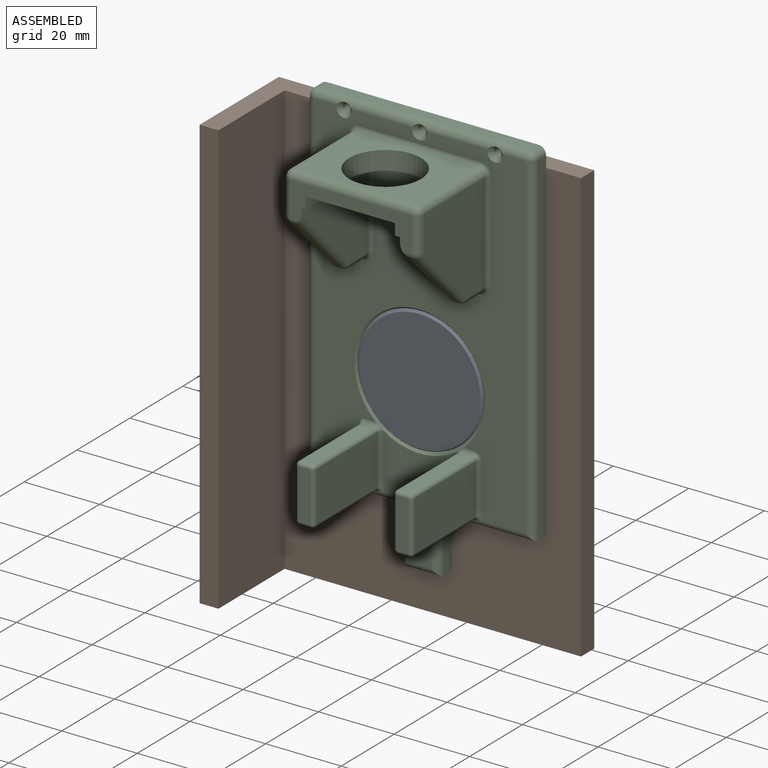
[diagram: assembled view]
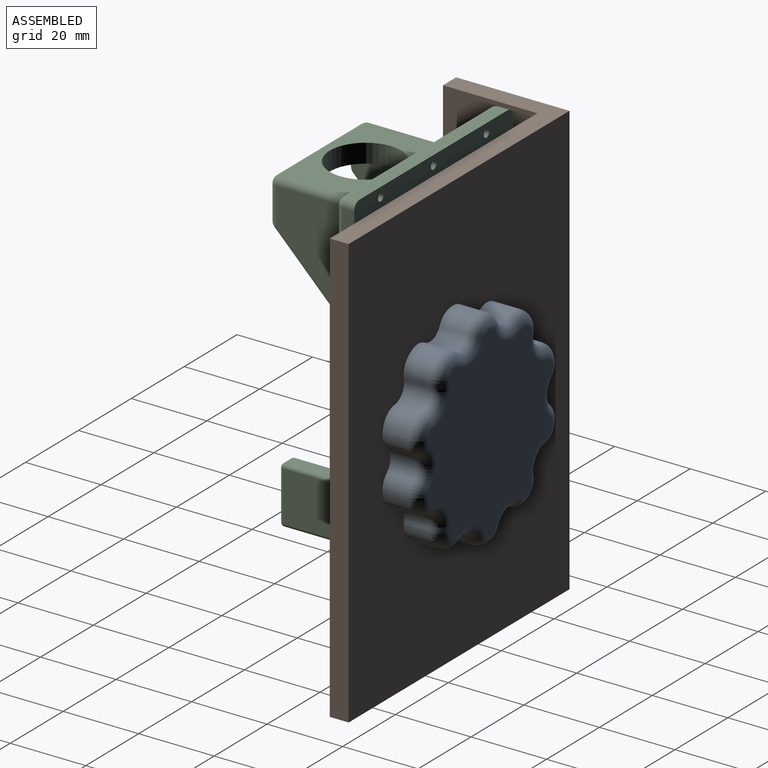
[diagram: assembled view, second angle]
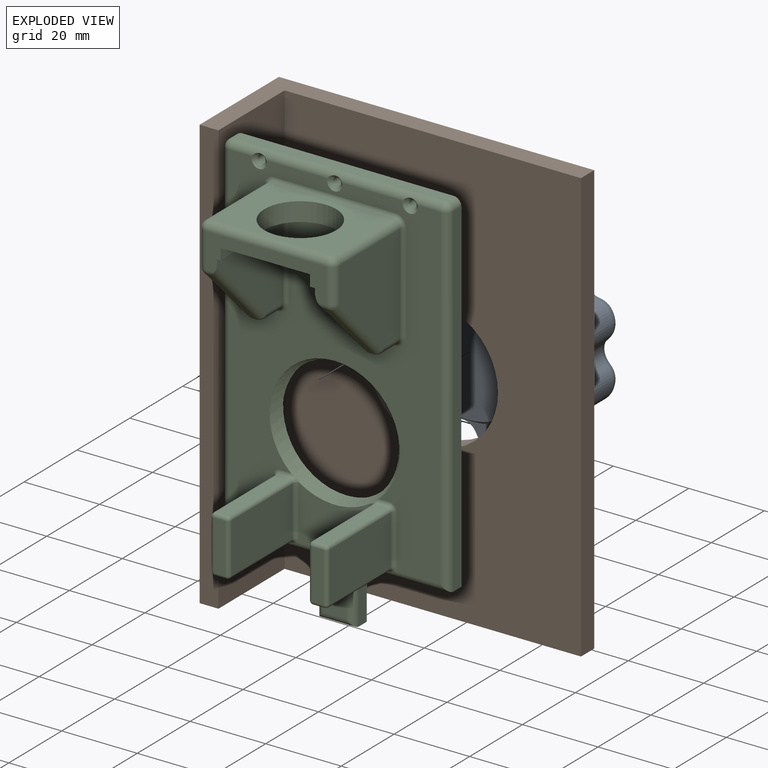
[diagram: exploded view]
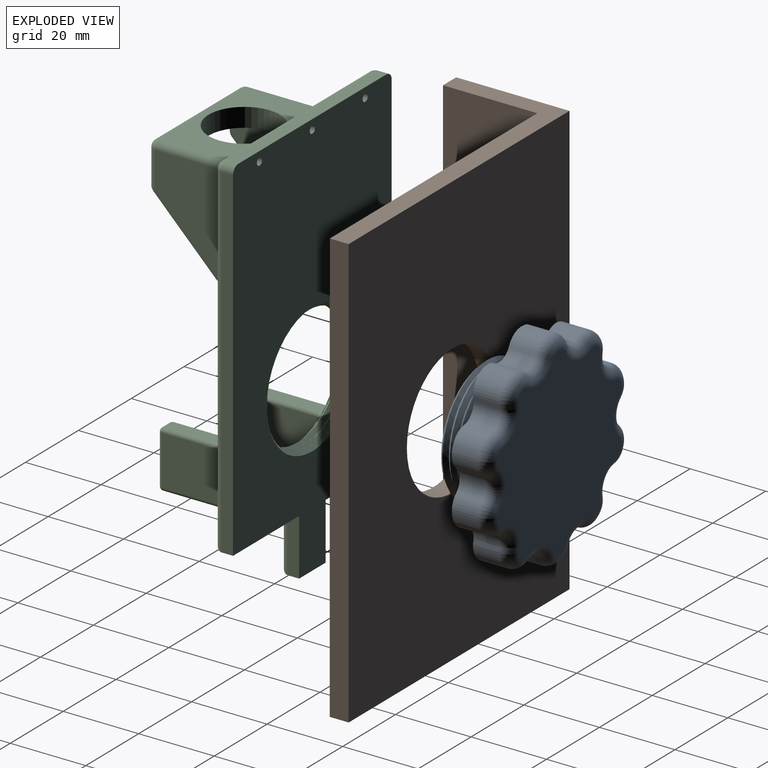
[diagram: exploded view, second angle]
ASSEMBLY  parts=3 mates=2
PART A: 90 faces, bbox 54x22.3x56 mm
  f0: cylinder r=17.15mm len=34.3mm, axis (0,1,0), area 432.6mm2, adj f2,f5,f6,f7,f89
  f1: cylinder r=17.15mm len=34.3mm, axis (0,1,0), area 1.6mm2, adj f2,f4,f5,f6
  f2: cylinder r=17.15mm len=34.3mm, axis (0,1,0), area 2.2mm2, adj f0,f1,f5,f6
  f3: plane 32.3x32.3mm, normal (0,-1,0), area 819.4mm2, adj f4
  f4: cone r=16.15mm half-angle=45deg, axis (0,1,0), area 74mm2, adj f1,f3,f5,f6
  f5: bspline ~39.61x34.3mm, area 404.7mm2, adj f0,f1,f2,f4,f6,f89
  f6: bspline ~39.61x34.3mm, area 404.5mm2, adj f0,f1,f2,f4,f5,f89
  f7: plane 55x52.96mm, normal (0,-1,0), area 1159.3mm2, adj f0,f8,f9,f10,f11,f12,f13,f14
  f8: cylinder r=4mm len=7mm, axis (0,-1,0), area 46.9mm2, adj f7,f29,f48,f86
  f9: cylinder r=27.5mm len=7mm, axis (0,-1,0), area 4.7mm2, adj f7,f29,f30,f87
  f10: cylinder r=4mm len=7mm, axis (0,-1,0), area 46.9mm2, adj f7,f30,f31,f83
  f11: cylinder r=27.5mm len=7mm, axis (0,-1,0), area 4.7mm2, adj f7,f31,f32,f79
  f12: cylinder r=4mm len=7mm, axis (0,-1,0), area 46.9mm2, adj f7,f32,f33,f75
  f13: cylinder r=27.5mm len=7mm, axis (0,-1,0), area 4.7mm2, adj f7,f33,f34,f71
  f14: cylinder r=4mm len=7mm, axis (0,-1,0), area 46.9mm2, adj f7,f34,f35,f67
  f15: cylinder r=27.5mm len=7mm, axis (0,-1,0), area 4.7mm2, adj f7,f35,f36,f63
  f16: cylinder r=4mm len=7mm, axis (0,-1,0), area 46.9mm2, adj f7,f36,f37,f59
  f17: cylinder r=27.5mm len=7mm, axis (0,-1,0), area 4.7mm2, adj f7,f37,f38,f55
  f18: cylinder r=4mm len=7mm, axis (0,-1,0), area 46.9mm2, adj f7,f38,f39,f51
  f19: cylinder r=27.5mm len=7mm, axis (0,-1,0), area 4.7mm2, adj f7,f39,f40,f50
  f20: cylinder r=4mm len=7mm, axis (0,-1,0), area 46.9mm2, adj f7,f40,f41,f54
  f21: cylinder r=27.5mm len=7mm, axis (0,-1,0), area 4.7mm2, adj f7,f41,f42,f58
  f22: cylinder r=4mm len=7mm, axis (0,-1,0), area 46.9mm2, adj f7,f42,f43,f62
  f23: cylinder r=27.5mm len=7mm, axis (0,-1,0), area 4.7mm2, adj f7,f43,f44,f66
  f24: cylinder r=4mm len=7mm, axis (0,-1,0), area 46.9mm2, adj f7,f44,f45,f70
  f25: cylinder r=27.5mm len=7mm, axis (0,-1,0), area 4.7mm2, adj f7,f45,f46,f74
  f26: cylinder r=4mm len=7mm, axis (0,-1,0), area 46.9mm2, adj f7,f46,f47,f78
  f27: cylinder r=27.5mm len=7mm, axis (0,-1,0), area 4.7mm2, adj f7,f47,f48,f82
  f28: plane 49x46.96mm, normal (0,1,0), area 1548.2mm2, adj f49,f50,f51,f52,f53,f54,f55,f56
  f29: cylinder r=5mm len=7mm, axis (0,1,0), area 39.9mm2, adj f7,f8,f9,f88
  f30: cylinder r=5mm len=7mm, axis (0,1,0), area 39.9mm2, adj f7,f9,f10,f85
  f31: cylinder r=5mm len=7mm, axis (0,1,0), area 39.9mm2, adj f7,f10,f11,f81
  f32: cylinder r=5mm len=7mm, axis (0,1,0), area 39.9mm2, adj f7,f11,f12,f77
  f33: cylinder r=5mm len=7mm, axis (0,1,0), area 39.9mm2, adj f7,f12,f13,f73
  f34: cylinder r=5mm len=7mm, axis (0,1,0), area 39.9mm2, adj f7,f13,f14,f69
  f35: cylinder r=5mm len=7mm, axis (0,1,0), area 39.9mm2, adj f7,f14,f15,f65
  f36: cylinder r=5mm len=7mm, axis (0,1,0), area 39.9mm2, adj f7,f15,f16,f61
  f37: cylinder r=5mm len=7mm, axis (0,1,0), area 39.9mm2, adj f7,f16,f17,f57
  f38: cylinder r=5mm len=7mm, axis (0,1,0), area 39.9mm2, adj f7,f17,f18,f53
  f39: cylinder r=5mm len=7mm, axis (0,1,0), area 39.9mm2, adj f7,f18,f19,f49
  f40: cylinder r=5mm len=7mm, axis (0,1,0), area 39.9mm2, adj f7,f19,f20,f52
  f41: cylinder r=5mm len=7mm, axis (0,1,0), area 39.9mm2, adj f7,f20,f21,f56
  f42: cylinder r=5mm len=7mm, axis (0,1,0), area 39.9mm2, adj f7,f21,f22,f60
  f43: cylinder r=5mm len=7mm, axis (0,1,0), area 39.9mm2, adj f7,f22,f23,f64
  f44: cylinder r=5mm len=7mm, axis (0,1,0), area 39.9mm2, adj f7,f23,f24,f68
  f45: cylinder r=5mm len=7mm, axis (0,1,0), area 39.9mm2, adj f7,f24,f25,f72
  f46: cylinder r=5mm len=7mm, axis (0,1,0), area 39.9mm2, adj f7,f25,f26,f76
  f47: cylinder r=5mm len=7mm, axis (0,1,0), area 39.9mm2, adj f7,f26,f27,f80
  f48: cylinder r=5mm len=7mm, axis (0,1,0), area 39.9mm2, adj f7,f8,f27,f84
  f49: torus R=2mm, axis (0,1,0), area 21mm2, adj f28,f39,f50,f51
  f50: torus R=24.5mm, axis (0,1,0), area 3mm2, adj f19,f28,f49,f52
  f51: torus R=7mm, axis (0,1,0), area 40.2mm2, adj f18,f28,f49,f53
  f52: torus R=2mm, axis (0,1,0), area 21mm2, adj f28,f40,f50,f54
  f53: torus R=2mm, axis (0,1,0), area 21mm2, adj f28,f38,f51,f55
  f54: torus R=7mm, axis (0,1,0), area 40.2mm2, adj f20,f28,f52,f56
  f55: torus R=24.5mm, axis (0,1,0), area 3mm2, adj f17,f28,f53,f57
  f56: torus R=2mm, axis (0,1,0), area 21mm2, adj f28,f41,f54,f58
  f57: torus R=2mm, axis (0,1,0), area 21mm2, adj f28,f37,f55,f59
  f58: torus R=24.5mm, axis (0,1,0), area 3mm2, adj f21,f28,f56,f60
  f59: torus R=7mm, axis (0,1,0), area 40.2mm2, adj f16,f28,f57,f61
  f60: torus R=2mm, axis (0,1,0), area 21mm2, adj f28,f42,f58,f62
  f61: torus R=2mm, axis (0,1,0), area 21mm2, adj f28,f36,f59,f63
  f62: torus R=7mm, axis (0,1,0), area 40.2mm2, adj f22,f28,f60,f64
  f63: torus R=24.5mm, axis (0,1,0), area 3mm2, adj f15,f28,f61,f65
  f64: torus R=2mm, axis (0,1,0), area 21mm2, adj f28,f43,f62,f66
  f65: torus R=2mm, axis (0,1,0), area 21mm2, adj f28,f35,f63,f67
  f66: torus R=24.5mm, axis (0,1,0), area 3mm2, adj f23,f28,f64,f68
  f67: torus R=7mm, axis (0,1,0), area 40.2mm2, adj f14,f28,f65,f69
  f68: torus R=2mm, axis (0,1,0), area 21mm2, adj f28,f44,f66,f70
  f69: torus R=2mm, axis (0,1,0), area 21mm2, adj f28,f34,f67,f71
  f70: torus R=7mm, axis (0,1,0), area 40.2mm2, adj f24,f28,f68,f72
  f71: torus R=24.5mm, axis (0,1,0), area 3mm2, adj f13,f28,f69,f73
  f72: torus R=2mm, axis (0,1,0), area 21mm2, adj f28,f45,f70,f74
  f73: torus R=2mm, axis (0,1,0), area 21mm2, adj f28,f33,f71,f75
  f74: torus R=24.5mm, axis (0,1,0), area 3mm2, adj f25,f28,f72,f76
  f75: torus R=7mm, axis (0,1,0), area 40.2mm2, adj f12,f28,f73,f77
  f76: torus R=2mm, axis (0,1,0), area 21mm2, adj f28,f46,f74,f78
  f77: torus R=2mm, axis (0,1,0), area 21mm2, adj f28,f32,f75,f79
  f78: torus R=7mm, axis (0,1,0), area 40.2mm2, adj f26,f28,f76,f80
  f79: torus R=24.5mm, axis (0,1,0), area 3mm2, adj f11,f28,f77,f81
  f80: torus R=2mm, axis (0,1,0), area 21mm2, adj f28,f47,f78,f82
  f81: torus R=2mm, axis (0,1,0), area 21mm2, adj f28,f31,f79,f83
  f82: torus R=24.5mm, axis (0,1,0), area 3mm2, adj f27,f28,f80,f84
  f83: torus R=7mm, axis (0,1,0), area 40.2mm2, adj f10,f28,f81,f85
  f84: torus R=2mm, axis (0,1,0), area 21mm2, adj f28,f48,f82,f86
  f85: torus R=2mm, axis (0,1,0), area 21mm2, adj f28,f30,f83,f87
  f86: torus R=7mm, axis (0,1,0), area 40.2mm2, adj f8,f28,f84,f88
  f87: torus R=24.5mm, axis (0,1,0), area 3mm2, adj f9,f28,f85,f88
  f88: torus R=2mm, axis (0,1,0), area 21mm2, adj f28,f29,f86,f87
  f89: plane 35.29x35.29mm, normal (0,-1,0), area 52.3mm2, adj f0,f5,f6
PART B: 9 faces, bbox 83.5x30x114.5 mm
  f0: plane 114.5x30mm, normal (-1,0,0), area 3435mm2, adj f1,f5,f6,f7
  f1: plane 114.5x5mm, normal (0,-1,0), area 572.5mm2, adj f0,f2,f6,f7
  f2: plane 114.5x25mm, normal (1,0,0), area 2862.5mm2, adj f1,f3,f6,f7
  f3: plane 114.5x78.5mm, normal (0,-1,0), area 8053.4mm2, adj f2,f4,f6,f7,f8
  f4: plane 114.5x5mm, normal (1,0,0), area 572.5mm2, adj f3,f5,f6,f7
  f5: plane 114.5x83.5mm, normal (0,1,0), area 8625.9mm2, adj f0,f4,f6,f7,f8
  f6: plane 83.5x30mm, normal (0,0,1), area 542.5mm2, adj f0,f1,f2,f3,f4,f5
  f7: plane 83.5x30mm, normal (0,0,-1), area 542.5mm2, adj f0,f1,f2,f3,f4,f5
  f8: cylinder r=17.25mm len=34.5mm, axis (0,-1,0), area 541.9mm2, adj f3,f5
PART C: 146 faces, bbox 60.1x33.8x108.2 mm
  f0: plane 89.07x56mm, normal (0,-1,0), area 2989.5mm2, adj f15,f16,f17,f26,f28,f29,f30,f59
  f1: plane 29.44x19.54mm, normal (0,-1,0), area 327.4mm2, adj f58,f59,f60,f63,f65,f72,f101,f105
  f2: plane 56x3mm, normal (0,0,1), area 168mm2, adj f14,f61,f66,f69
  f3: plane 91.07x3mm, normal (-1,0,0), area 273.2mm2, adj f4,f14,f67,f69
  f4: plane 25x3mm, normal (0,0,-1), area 75mm2, adj f3,f5,f14,f65
  f5: plane 15x3mm, normal (-1,0,0), area 45mm2, adj f4,f6,f14,f63
  f6: plane 10x3mm, normal (0,0,-1), area 30mm2, adj f5,f7,f14,f60
  f7: plane 15x3mm, normal (1,0,0), area 45mm2, adj f6,f8,f14,f58
  f8: plane 25x3mm, normal (0,0,-1), area 75mm2, adj f7,f9,f14,f59
  f9: plane 91.07x3mm, normal (1,0,0), area 273.2mm2, adj f8,f14,f61,f62
  f10: cylinder r=1mm len=4mm, axis (0,1,0), area 25.1mm2, adj f14,f30
  f11: cylinder r=1mm len=4mm, axis (0,1,0), area 25.1mm2, adj f14,f29
  f12: cylinder r=1mm len=4mm, axis (0,1,0), area 25.1mm2, adj f14,f28
  f13: cylinder r=16.25mm len=32.5mm, axis (0,1,0), area 3mm2, adj f71,f72,f73,f74
  f14: plane 108.07x60mm, normal (0,1,0), area 4788.3mm2, adj f2,f3,f4,f5,f6,f7,f8,f9
  f15: plane 26x23.63mm, normal (0,0,-1), area 330.7mm2, adj f0,f16,f26,f27,f70
  f16: plane 26x3mm, normal (-1,0,0), area 78mm2, adj f0,f15,f17,f27
  f17: plane 26x1.38mm, normal (0,0,-1), area 35.5mm2, adj f0,f16,f18,f27,f85
  f18: plane 25x20mm, normal (-1,0,0), area 322.7mm2, adj f17,f27,f47,f48,f85
  f19: plane 6.17x1mm, normal (0,0,-1), area 6.2mm2, adj f47,f53,f54,f87
  f20: plane 26x23mm, normal (1,0,0), area 456.4mm2, adj f46,f52,f53,f57,f89
  f21: plane 32x23mm, normal (0,0,1), area 452.5mm2, adj f43,f45,f46,f70,f91
  f22: plane 26x23mm, normal (-1,0,0), area 456.4mm2, adj f36,f40,f42,f43,f93
  f23: plane 6.17x1mm, normal (0,0,-1), area 6.2mm2, adj f33,f35,f36,f95
  f24: plane 25x20mm, normal (1,0,0), area 322.7mm2, adj f25,f27,f33,f37,f97
  f25: plane 26x1mm, normal (0,0,-1), area 25.8mm2, adj f24,f26,f27,f97
  f26: plane 26x3mm, normal (1,0,0), area 78mm2, adj f0,f15,f25,f27
  f27: plane 32.12x9.29mm, normal (0,-1,0), area 139.4mm2, adj f15,f16,f17,f18,f24,f25,f26,f37
  f28: cone r=1mm half-angle=45deg, axis (0,-1,0), area 13.3mm2, adj f0,f12,f66
  f29: cone r=1mm half-angle=45deg, axis (0,-1,0), area 13.3mm2, adj f0,f11,f66
  f30: cone r=1mm half-angle=45deg, axis (0,-1,0), area 13.3mm2, adj f0,f10,f66
  f31: plane 16.83x16.83mm, normal (0,-0.71,-0.71), area 23.8mm2, adj f35,f37,f39,f40
  f32: plane 16.83x16.83mm, normal (0,-0.71,-0.71), area 23.8mm2, adj f48,f51,f54,f57
  f33: cylinder r=2mm len=6.17mm, axis (0,1,0), area 19.4mm2, adj f23,f24,f34,f96
  f34: sphere r=2mm, area 3.9mm2, adj f33,f35,f37
  f35: cylinder r=2mm len=1.41mm, axis (1,0,0), area 1.6mm2, adj f23,f31,f34,f38
  f36: cylinder r=2mm len=6.17mm, axis (0,1,0), area 19.4mm2, adj f22,f23,f38,f94
  f37: cylinder r=2mm len=20.24mm, axis (0,-0.71,0.71), area 79.2mm2, adj f24,f27,f31,f34,f39
  f38: sphere r=2mm, area 3.9mm2, adj f35,f36,f40
  f39: cylinder r=2mm len=2.41mm, axis (-1,0,0), area 2.7mm2, adj f27,f31,f37,f41
  f40: cylinder r=2mm len=18.24mm, axis (0,0.71,-0.71), area 74.8mm2, adj f22,f31,f38,f41
  f41: sphere r=2mm, area 2.3mm2, adj f39,f40,f42
  f42: cylinder r=2mm len=9.17mm, axis (0,0,1), area 28.8mm2, adj f22,f27,f41,f44
  f43: cylinder r=2mm len=23mm, axis (0,-1,0), area 72.3mm2, adj f21,f22,f44,f92
  f44: sphere r=2mm, area 6.3mm2, adj f42,f43,f45
  f45: cylinder r=2mm len=32mm, axis (1,0,0), area 100.5mm2, adj f21,f27,f44,f49
  f46: cylinder r=2mm len=23mm, axis (0,-1,0), area 72.3mm2, adj f20,f21,f49,f90
  f47: cylinder r=2mm len=6.17mm, axis (0,-1,0), area 19.4mm2, adj f18,f19,f50,f86
  f48: cylinder r=2mm len=20.24mm, axis (0,-0.71,0.71), area 79.2mm2, adj f18,f27,f32,f50,f51
  f49: sphere r=2mm, area 6.3mm2, adj f45,f46,f52
  f50: sphere r=2mm, area 3.9mm2, adj f47,f48,f54
  f51: cylinder r=2mm len=2.41mm, axis (-1,0,0), area 2.7mm2, adj f27,f32,f48,f55
  f52: cylinder r=2mm len=9.17mm, axis (0,0,-1), area 28.8mm2, adj f20,f27,f49,f55
  f53: cylinder r=2mm len=6.17mm, axis (0,1,0), area 19.4mm2, adj f19,f20,f56,f88
  f54: cylinder r=2mm len=1.41mm, axis (1,0,0), area 1.6mm2, adj f19,f32,f50,f56
  f55: sphere r=2mm, area 2.3mm2, adj f51,f52,f57
  f56: sphere r=2mm, area 3.9mm2, adj f53,f54,f57
  f57: cylinder r=2mm len=18.24mm, axis (0,-0.71,0.71), area 74.8mm2, adj f20,f32,f55,f56
  f58: cylinder r=2mm len=17mm, axis (0,0,-1), area 47.1mm2, adj f1,f7,f59,f60
  f59: cylinder r=2mm len=27mm, axis (-1,0,0), area 75.3mm2, adj f0,f1,f8,f58,f62,f99,f102,f106
  f60: cylinder r=2mm len=10mm, axis (-1,0,0), area 25.1mm2, adj f1,f6,f58,f63
  f61: cylinder r=2mm len=3mm, axis (0,1,0), area 9.4mm2, adj f2,f9,f14,f64
  f62: cylinder r=2mm len=91.07mm, axis (0,0,-1), area 283mm2, adj f0,f9,f59,f64
  f63: cylinder r=2mm len=17mm, axis (0,0,1), area 47.1mm2, adj f1,f5,f60,f65
  f64: sphere r=2mm, area 6.3mm2, adj f61,f62,f66
  f65: cylinder r=2mm len=27mm, axis (-1,0,0), area 75.3mm2, adj f0,f1,f4,f63,f67,f122,f124,f127
  f66: cylinder r=2mm len=56mm, axis (1,0,0), area 165.5mm2, adj f0,f2,f28,f29,f30,f64,f68
  f67: cylinder r=2mm len=91.07mm, axis (0,0,1), area 283mm2, adj f0,f3,f65,f68
  f68: sphere r=2mm, area 6.3mm2, adj f66,f67,f69
  f69: cylinder r=2mm len=3mm, axis (0,-1,0), area 9.4mm2, adj f2,f3,f14,f68
  f70: cylinder r=9.5mm len=19mm, axis (0,0,1), area 298.5mm2, adj f15,f21
  f71: cone r=17.25mm half-angle=45deg, axis (0,1,0), area 75.8mm2, adj f13,f14,f73,f74
  f72: cone r=16.25mm half-angle=45deg, axis (0,-1,0), area 76mm2, adj f0,f1,f13,f73,f74,f114,f119,f142
  f73: bspline ~39.84x34.5mm, area 297.1mm2, adj f13,f71,f72,f74
  f74: bspline ~39.84x34.5mm, area 296.8mm2, adj f13,f71,f72,f73
  f75: plane 23x13.13mm, normal (-1,0,0), area 302.1mm2, adj f98,f104,f105,f113
  f76: plane 23.17x3mm, normal (0,0,-1), area 69.5mm2, adj f98,f102,f103,f110
  f77: plane 23x13.13mm, normal (1,0,0), area 302.1mm2, adj f110,f111,f117,f118
  f78: plane 23.01x3mm, normal (0,0,1), area 69mm2, adj f112,f113,f118,f119,f121
  f79: plane 13.13x3mm, normal (0,-1,0), area 39.4mm2, adj f103,f104,f111,f112
  f80: plane 23.17x3mm, normal (0,0,-1), area 69.5mm2, adj f123,f124,f128,f132
  f81: plane 23x13.13mm, normal (1,0,0), area 302.1mm2, adj f132,f137,f140,f144
  f82: plane 23.01x3mm, normal (0,0,1), area 69mm2, adj f130,f138,f139,f142,f144
  f83: plane 23x13.13mm, normal (-1,0,0), area 302.1mm2, adj f123,f129,f130,f131
  f84: plane 13.13x3mm, normal (0,-1,0), area 39.4mm2, adj f128,f129,f137,f138
  f85: cylinder r=1mm len=20mm, axis (0,0,-1), area 31.4mm2, adj f0,f17,f18,f86
  f86: torus R=3mm, axis (0,-1,0), area 5.8mm2, adj f0,f47,f85,f87
  f87: cylinder r=1mm len=1mm, axis (1,0,0), area 1.6mm2, adj f0,f19,f86,f88
  f88: torus R=3mm, axis (0,-1,0), area 5.8mm2, adj f0,f53,f87,f89
  f89: cylinder r=1mm len=26mm, axis (0,0,1), area 40.8mm2, adj f0,f20,f88,f90
  f90: torus R=3mm, axis (0,-1,0), area 5.8mm2, adj f0,f46,f89,f91
  f91: cylinder r=1mm len=32mm, axis (-1,0,0), area 50.3mm2, adj f0,f21,f90,f92
  f92: torus R=3mm, axis (0,-1,0), area 5.8mm2, adj f0,f43,f91,f93
  f93: cylinder r=1mm len=26mm, axis (0,0,-1), area 40.8mm2, adj f0,f22,f92,f94
  f94: torus R=3mm, axis (0,-1,0), area 5.8mm2, adj f0,f36,f93,f95
  f95: cylinder r=1mm len=1mm, axis (1,0,0), area 1.6mm2, adj f0,f23,f94,f96
  f96: torus R=3mm, axis (0,-1,0), area 5.8mm2, adj f0,f33,f95,f97
  f97: cylinder r=1mm len=20mm, axis (0,0,1), area 31.4mm2, adj f0,f24,f25,f96
  f98: cylinder r=1mm len=23.17mm, axis (0,-1,0), area 36.2mm2, adj f75,f76,f99,f100,f101
  f99: bspline ~2.3x1.32mm, area 1.8mm2, adj f59,f98,f101,f102
  f100: sphere r=1mm, area 1.6mm2, adj f98,f103,f104
  f101: torus R=2mm, axis (0,-1,0), area 1.1mm2, adj f1,f98,f99,f105
  f102: cylinder r=1mm len=3mm, axis (-1,0,0), area 3.7mm2, adj f59,f76,f99,f106
  f103: cylinder r=1mm len=3mm, axis (-1,0,0), area 4.7mm2, adj f76,f79,f100,f107
  f104: cylinder r=1mm len=13.13mm, axis (0,0,1), area 20.6mm2, adj f75,f79,f100,f108
  f105: cylinder r=1mm len=13.13mm, axis (0,0,-1), area 20.6mm2, adj f1,f75,f101,f109
  f106: bspline ~2.3x1.32mm, area 1.8mm2, adj f59,f102,f110,f115
  f107: sphere r=1mm, area 2.1mm2, adj f103,f110,f111
  f108: sphere r=1mm, area 1.6mm2, adj f104,f112,f113
  f109: torus R=2mm, axis (0,-1,0), area 0.3mm2, adj f1,f105,f113,f114
  f110: cylinder r=1mm len=23.17mm, axis (0,1,0), area 36.2mm2, adj f76,f77,f106,f107,f115
  f111: cylinder r=1mm len=13.13mm, axis (0,0,-1), area 20.6mm2, adj f77,f79,f107,f116
  f112: cylinder r=1mm len=3mm, axis (1,0,0), area 4.7mm2, adj f78,f79,f108,f116
  f113: cylinder r=1mm len=23.19mm, axis (0,1,0), area 36.3mm2, adj f75,f78,f108,f109,f114
  f114: bspline ~2.06x1.75mm, area 2mm2, adj f72,f109,f113,f119
  f115: torus R=2mm, axis (0,-1,0), area 1.1mm2, adj f0,f106,f110,f117
  f116: sphere r=1mm, area 1.6mm2, adj f111,f112,f118
  f117: cylinder r=1mm len=13.13mm, axis (0,0,1), area 20.6mm2, adj f0,f77,f115,f120
  f118: cylinder r=1mm len=23mm, axis (0,-1,0), area 36.1mm2, adj f77,f78,f116,f120
  f119: bspline ~1.15x1.14mm, area 0.2mm2, adj f72,f78,f114,f121
  f120: torus R=2mm, axis (0,-1,0), area 3.4mm2, adj f0,f117,f118,f121
  f121: cylinder r=1mm len=2.81mm, axis (-1,0,0), area 4.4mm2, adj f0,f78,f119,f120
  f122: bspline ~2.3x1.32mm, area 1.8mm2, adj f65,f123,f124,f126
  f123: cylinder r=1mm len=23.17mm, axis (0,-1,0), area 36.2mm2, adj f80,f83,f122,f125,f126
  f124: cylinder r=1mm len=3mm, axis (-1,0,0), area 3.7mm2, adj f65,f80,f122,f127
  f125: sphere r=1mm, area 1.6mm2, adj f123,f128,f129
  f126: torus R=2mm, axis (0,-1,0), area 1.1mm2, adj f0,f122,f123,f131
  f127: bspline ~2.3x1.32mm, area 1.8mm2, adj f65,f124,f132,f136
  f128: cylinder r=1mm len=3mm, axis (-1,0,0), area 4.7mm2, adj f80,f84,f125,f133
  f129: cylinder r=1mm len=13.13mm, axis (0,0,1), area 20.6mm2, adj f83,f84,f125,f134
  f130: cylinder r=1mm len=23mm, axis (0,-1,0), area 36.1mm2, adj f82,f83,f134,f135
  f131: cylinder r=1mm len=13.13mm, axis (0,0,-1), area 20.6mm2, adj f0,f83,f126,f135
  f132: cylinder r=1mm len=23.17mm, axis (0,1,0), area 36.2mm2, adj f80,f81,f127,f133,f136
  f133: sphere r=1mm, area 1.6mm2, adj f128,f132,f137
  f134: sphere r=1mm, area 1.6mm2, adj f129,f130,f138
  f135: torus R=2mm, axis (0,-1,0), area 3.4mm2, adj f0,f130,f131,f139
  f136: torus R=2mm, axis (0,-1,0), area 1.1mm2, adj f1,f127,f132,f140
  f137: cylinder r=1mm len=13.13mm, axis (0,0,-1), area 20.6mm2, adj f81,f84,f133,f141
  f138: cylinder r=1mm len=3mm, axis (1,0,0), area 4.7mm2, adj f82,f84,f134,f141
  f139: cylinder r=1mm len=2.81mm, axis (-1,0,0), area 4.4mm2, adj f0,f82,f135,f142
  f140: cylinder r=1mm len=13.13mm, axis (0,0,1), area 20.6mm2, adj f1,f81,f136,f143
  f141: sphere r=1mm, area 1.6mm2, adj f137,f138,f144
  f142: bspline ~1.04x1.04mm, area 0.2mm2, adj f72,f82,f139,f145
  f143: torus R=2mm, axis (0,-1,0), area 0.3mm2, adj f1,f140,f144,f145
  f144: cylinder r=1mm len=23.19mm, axis (0,1,0), area 36.3mm2, adj f81,f82,f141,f143,f145
  f145: bspline ~2.25x1.93mm, area 2mm2, adj f72,f142,f143,f144
PLACE A t=(-46.05,36.85,95.13)mm
PLACE B t=(-33.43,16.64,37.88)mm
PLACE C t=(-33.43,16.64,37.88)mm
MATE fastened C.f72 <-> B.f8  axis (0,1,0) through (-46.05,31.85,95.13)mm
MATE fastened A.f0 <-> B.f8  axis (0,-1,0) through (-46.05,36.85,95.13)mm
